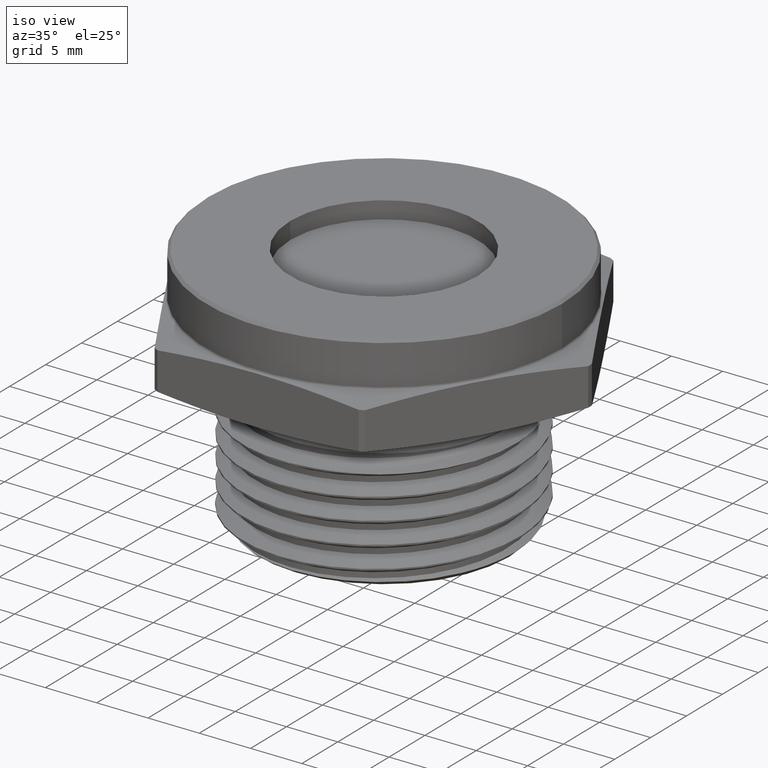
[diagram: clean part render]
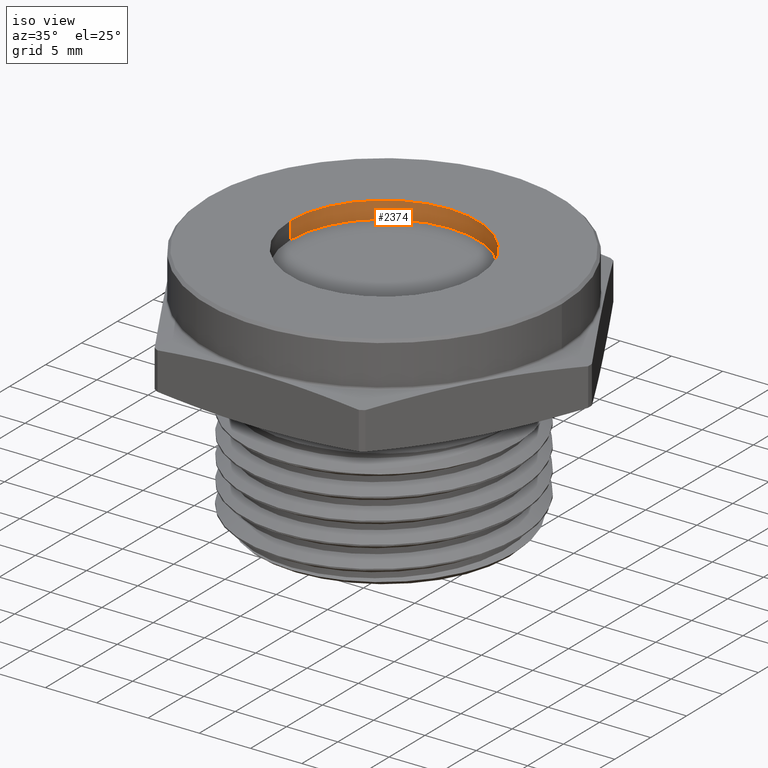
[diagram: same view with one face highlighted and labeled with its STEP entity id]
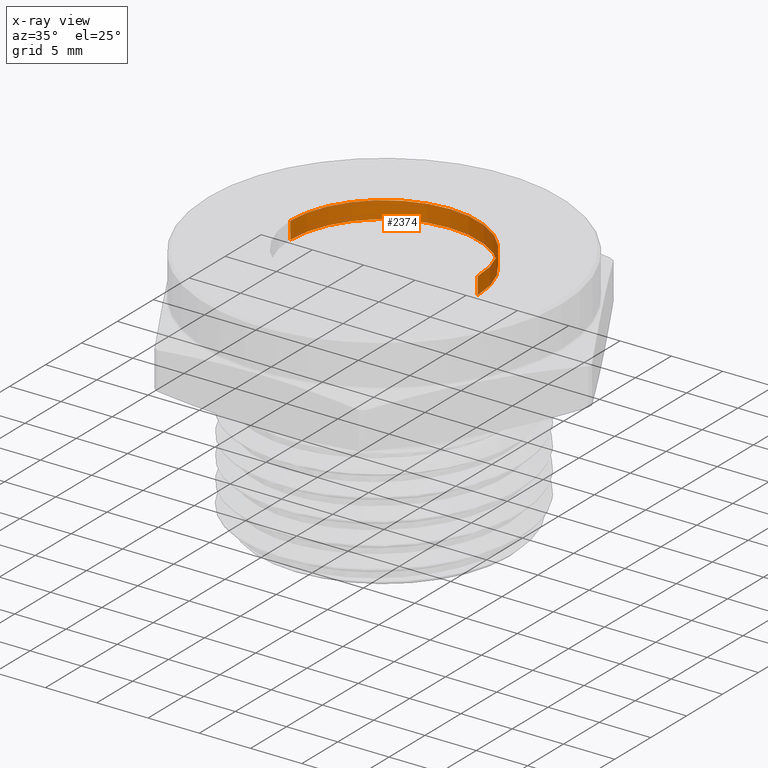
[diagram: x-ray of the same camera — body ghosted, the highlighted face saturated]
A machine part, iso view. The second image highlights one B-rep face of the part: STEP entity #2374.
The next image is the same camera in x-ray: the body ghosted, the highlighted face saturated — about 0% of this face is hidden behind the body in this view.
In plain terms, the highlighted cylindrical surface (partial cylindrical patch) has radius 9.1313 mm, axis along (-0, -0, 1).
Its self-contained STEP definition (entity closure, byte-faithful):
#349 = EDGE_CURVE ( 'NONE', #1226, #1257, #363, .T. ) ;
#363 = LINE ( 'NONE', #1337, #367 ) ;
#367 = VECTOR ( 'NONE', #1333, 39.37007874015748100 ) ;
#368 = LINE ( 'NONE', #1340, #370 ) ;
#370 = VECTOR ( 'NONE', #1332, 39.37007874015748100 ) ;
#477 = CIRCLE ( 'NONE', #2289, 0.3594999999999999300 ) ;
#482 = CIRCLE ( 'NONE', #2286, 0.3594999999999999300 ) ;
#540 = CYLINDRICAL_SURFACE ( 'NONE', #2312, 0.3594999999999999300 ) ;
#542 = FACE_OUTER_BOUND ( 'NONE', #1748, .T. ) ;
#938 = CARTESIAN_POINT ( 'NONE',  ( 0.0000000000000000000, 0.0000000000000000000, 0.3599999999999999900 ) ) ;
#939 = DIRECTION ( 'NONE',  ( -0.0000000000000000000, -0.0000000000000000000, 1.000000000000000000 ) ) ;
#940 = DIRECTION ( 'NONE',  ( 1.000000000000000000, 0.0000000000000000000, 0.0000000000000000000 ) ) ;
#1208 = EDGE_CURVE ( 'NONE', #1247, #1249, #368, .T. ) ;
#1226 = VERTEX_POINT ( 'NONE', #1346 ) ;
#1247 = VERTEX_POINT ( 'NONE', #1376 ) ;
#1249 = VERTEX_POINT ( 'NONE', #1378 ) ;
#1257 = VERTEX_POINT ( 'NONE', #1379 ) ;
#1332 = DIRECTION ( 'NONE',  ( -0.0000000000000000000, -0.0000000000000000000, 1.000000000000000000 ) ) ;
#1333 = DIRECTION ( 'NONE',  ( -0.0000000000000000000, -0.0000000000000000000, 1.000000000000000000 ) ) ;
#1337 = CARTESIAN_POINT ( 'NONE',  ( 0.3594999999999999300, 0.0000000000000000000, 0.4770422549202507100 ) ) ;
#1340 = CARTESIAN_POINT ( 'NONE',  ( -0.3594999999999999300, 4.402605242934734300E-017, 0.4770422549202507100 ) ) ;
#1346 = CARTESIAN_POINT ( 'NONE',  ( 0.3594999999999999300, 0.0000000000000000000, 0.2939999999999999800 ) ) ;
#1376 = CARTESIAN_POINT ( 'NONE',  ( -0.3594999999999999300, 4.402605242934734300E-017, 0.2939999999999999800 ) ) ;
#1378 = CARTESIAN_POINT ( 'NONE',  ( -0.3594999999999999300, 4.402605242934734300E-017, 0.3599999999999999900 ) ) ;
#1379 = CARTESIAN_POINT ( 'NONE',  ( 0.3594999999999999300, 0.0000000000000000000, 0.3599999999999999900 ) ) ;
#1748 = EDGE_LOOP ( 'NONE', ( #1903, #1904, #1905, #1906 ) ) ;
#1903 = ORIENTED_EDGE ( 'NONE', *, *, #1208, .F. ) ;
#1904 = ORIENTED_EDGE ( 'NONE', *, *, #2191, .F. ) ;
#1905 = ORIENTED_EDGE ( 'NONE', *, *, #349, .T. ) ;
#1906 = ORIENTED_EDGE ( 'NONE', *, *, #2201, .T. ) ;
#2191 = EDGE_CURVE ( 'NONE', #1226, #1247, #482, .T. ) ;
#2201 = EDGE_CURVE ( 'NONE', #1257, #1249, #477, .T. ) ;
#2286 = AXIS2_PLACEMENT_3D ( 'NONE', #3083, #3084, #3085 ) ;
#2289 = AXIS2_PLACEMENT_3D ( 'NONE', #938, #939, #940 ) ;
#2312 = AXIS2_PLACEMENT_3D ( 'NONE', #2862, #2863, #2860 ) ;
#2374 = ADVANCED_FACE ( 'NONE', ( #542 ), #540, .F. ) ;
#2860 = DIRECTION ( 'NONE',  ( 1.000000000000000000, 0.0000000000000000000, 0.0000000000000000000 ) ) ;
#2862 = CARTESIAN_POINT ( 'NONE',  ( 0.0000000000000000000, 0.0000000000000000000, 0.4770422549202507100 ) ) ;
#2863 = DIRECTION ( 'NONE',  ( -0.0000000000000000000, -0.0000000000000000000, 1.000000000000000000 ) ) ;
#3083 = CARTESIAN_POINT ( 'NONE',  ( 0.0000000000000000000, 0.0000000000000000000, 0.2939999999999999800 ) ) ;
#3084 = DIRECTION ( 'NONE',  ( -0.0000000000000000000, -0.0000000000000000000, 1.000000000000000000 ) ) ;
#3085 = DIRECTION ( 'NONE',  ( 1.000000000000000000, 0.0000000000000000000, 0.0000000000000000000 ) ) ;